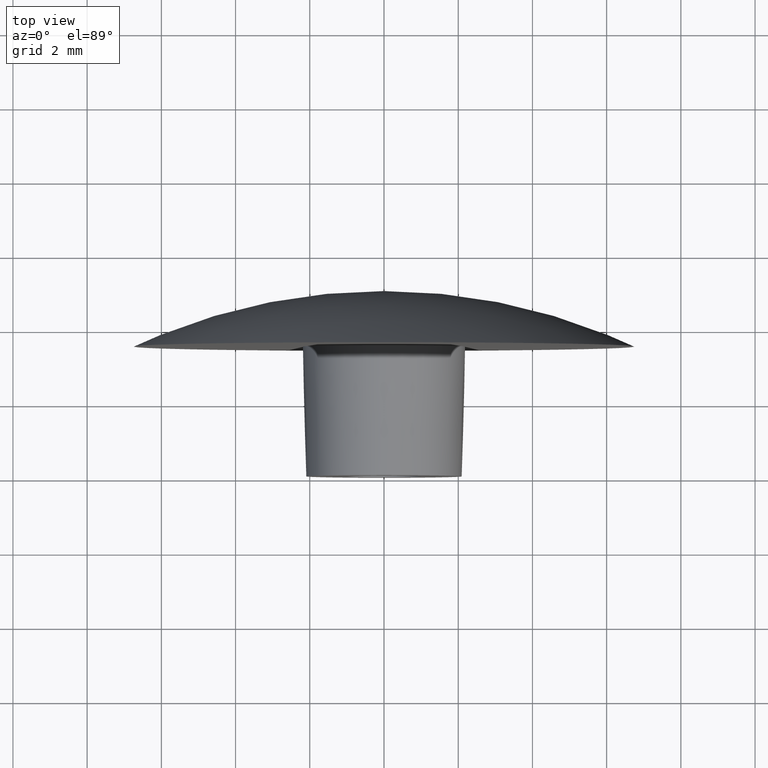
[diagram: clean part render]
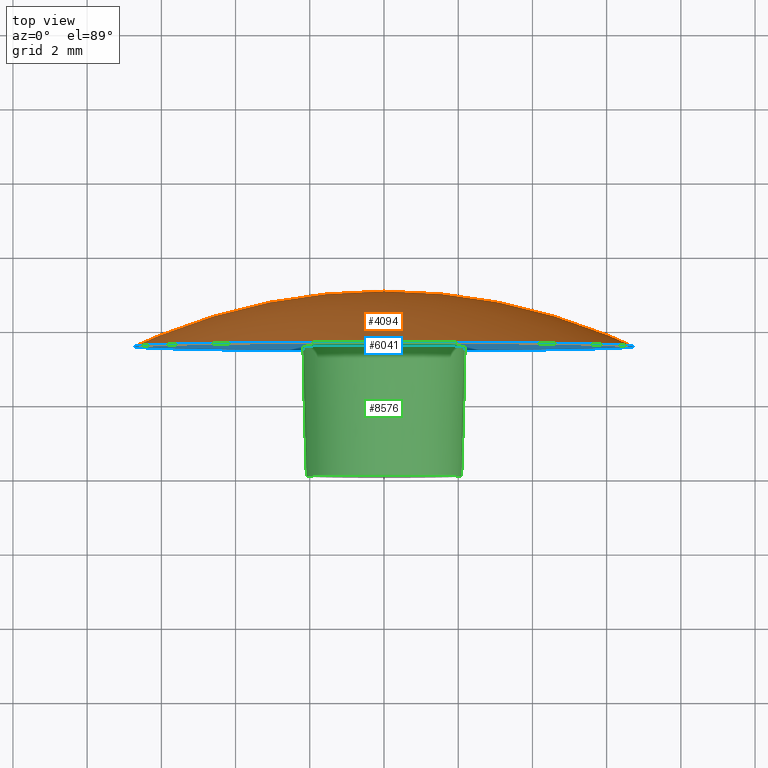
[diagram: same view with three faces highlighted in distinct colors, each labeled with its STEP entity id]
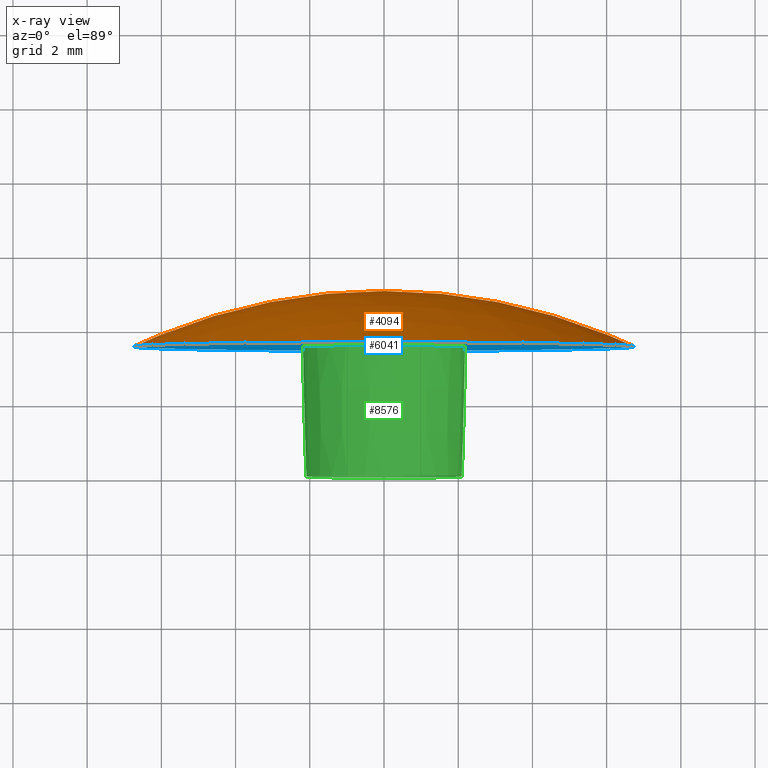
[diagram: x-ray of the same camera — body ghosted, the three highlighted faces saturated]
A machine part, top view with three faces highlighted in distinct colors.
The next image is the same camera in x-ray (body ghosted, the three faces saturated) — at least one of them is partly hidden behind the body in this view.
Their STEP definitions:

[orange] entity #4094 — the highlighted spherical surface has radius 15.9375 mm.
#1962 = AXIS2_PLACEMENT_3D ( 'NONE', #8669, #10392, #9631 ) ;
#2151 = EDGE_CURVE ( 'NONE', #7043, #7043, #9759, .T. ) ;
#2532 = DIRECTION ( 'NONE',  ( 0.000000000000000000, 0.000000000000000000, -1.000000000000000000 ) ) ;
#2568 = CARTESIAN_POINT ( 'NONE',  ( 0.000000000000000000, 3.500000000000001332, -6.749999999999998224 ) ) ;
#3389 = CARTESIAN_POINT ( 'NONE',  ( 0.000000000000000000, 3.500000000000001332, 0.000000000000000000 ) ) ;
#4094 = ADVANCED_FACE ( 'NONE', ( #6294 ), #9262, .T. ) ;
#4562 = EDGE_LOOP ( 'NONE', ( #5551 ) ) ;
#5551 = ORIENTED_EDGE ( 'NONE', *, *, #2151, .F. ) ;
#5786 = AXIS2_PLACEMENT_3D ( 'NONE', #3389, #9164, #2532 ) ;
#6294 = FACE_OUTER_BOUND ( 'NONE', #4562, .T. ) ;
#7043 = VERTEX_POINT ( 'NONE', #2568 ) ;
#8669 = CARTESIAN_POINT ( 'NONE',  ( 0.000000000000000000, -10.93750000000000178, 0.000000000000000000 ) ) ;
#9164 = DIRECTION ( 'NONE',  ( -0.000000000000000000, -1.000000000000000000, -0.000000000000000000 ) ) ;
#9262 = SPHERICAL_SURFACE ( 'NONE', #1962, 15.93750000000000000 ) ;
#9631 = DIRECTION ( 'NONE',  ( 1.000000000000000000, 0.000000000000000000, 0.000000000000000000 ) ) ;
#9759 = CIRCLE ( 'NONE', #5786, 6.749999999999998224 ) ;
#10392 = DIRECTION ( 'NONE',  ( 0.000000000000000000, 0.000000000000000000, 1.000000000000000000 ) ) ;

[blue] entity #6041 — the highlighted planar face has unit normal (0, -1, -0).
#542 = DIRECTION ( 'NONE',  ( 0.000000000000000000, -1.000000000000000000, -0.000000000000000000 ) ) ;
#607 = ORIENTED_EDGE ( 'NONE', *, *, #6146, .F. ) ;
#918 = CARTESIAN_POINT ( 'NONE',  ( 0.000000000000000000, 3.500000000000000000, -2.199999999999999734 ) ) ;
#1718 = CARTESIAN_POINT ( 'NONE',  ( 0.000000000000000000, 3.500000000000000000, 0.000000000000000000 ) ) ;
#2113 = AXIS2_PLACEMENT_3D ( 'NONE', #1718, #9798, #9831 ) ;
#2151 = EDGE_CURVE ( 'NONE', #7043, #7043, #9759, .T. ) ;
#2321 = AXIS2_PLACEMENT_3D ( 'NONE', #8794, #542, #7230 ) ;
#2532 = DIRECTION ( 'NONE',  ( 0.000000000000000000, 0.000000000000000000, -1.000000000000000000 ) ) ;
#2568 = CARTESIAN_POINT ( 'NONE',  ( 0.000000000000000000, 3.500000000000001332, -6.749999999999998224 ) ) ;
#2997 = CIRCLE ( 'NONE', #2113, 2.199999999999999734 ) ;
#3389 = CARTESIAN_POINT ( 'NONE',  ( 0.000000000000000000, 3.500000000000001332, 0.000000000000000000 ) ) ;
#4049 = FACE_OUTER_BOUND ( 'NONE', #4435, .T. ) ;
#4435 = EDGE_LOOP ( 'NONE', ( #6302 ) ) ;
#5479 = PLANE ( 'NONE',  #2321 ) ;
#5486 = VERTEX_POINT ( 'NONE', #918 ) ;
#5786 = AXIS2_PLACEMENT_3D ( 'NONE', #3389, #9164, #2532 ) ;
#6041 = ADVANCED_FACE ( 'NONE', ( #4049, #9237 ), #5479, .T. ) ;
#6146 = EDGE_CURVE ( 'NONE', #5486, #5486, #2997, .T. ) ;
#6302 = ORIENTED_EDGE ( 'NONE', *, *, #2151, .T. ) ;
#7043 = VERTEX_POINT ( 'NONE', #2568 ) ;
#7230 = DIRECTION ( 'NONE',  ( 0.000000000000000000, 0.000000000000000000, -1.000000000000000000 ) ) ;
#8794 = CARTESIAN_POINT ( 'NONE',  ( 2.199999999999999734, 3.500000000000000444, 0.000000000000000000 ) ) ;
#9164 = DIRECTION ( 'NONE',  ( -0.000000000000000000, -1.000000000000000000, -0.000000000000000000 ) ) ;
#9237 = FACE_BOUND ( 'NONE', #9571, .T. ) ;
#9571 = EDGE_LOOP ( 'NONE', ( #607 ) ) ;
#9759 = CIRCLE ( 'NONE', #5786, 6.749999999999998224 ) ;
#9798 = DIRECTION ( 'NONE',  ( -0.000000000000000000, -1.000000000000000000, -0.000000000000000000 ) ) ;
#9831 = DIRECTION ( 'NONE',  ( 0.000000000000000000, 0.000000000000000000, -1.000000000000000000 ) ) ;

[green] entity #8576 — the highlighted conical surface has half-angle 1.5 deg.
#124 = CONICAL_SURFACE ( 'NONE', #1679, 2.108349274507870685, 0.02617993877990773890 ) ;
#911 = DIRECTION ( 'NONE',  ( 0.000000000000000000, 1.000000000000000000, 0.000000000000000000 ) ) ;
#918 = CARTESIAN_POINT ( 'NONE',  ( 0.000000000000000000, 3.500000000000000000, -2.199999999999999734 ) ) ;
#1350 = ORIENTED_EDGE ( 'NONE', *, *, #6146, .T. ) ;
#1679 = AXIS2_PLACEMENT_3D ( 'NONE', #2637, #911, #7528 ) ;
#1718 = CARTESIAN_POINT ( 'NONE',  ( 0.000000000000000000, 3.500000000000000000, 0.000000000000000000 ) ) ;
#2113 = AXIS2_PLACEMENT_3D ( 'NONE', #1718, #9798, #9831 ) ;
#2502 = ORIENTED_EDGE ( 'NONE', *, *, #9854, .F. ) ;
#2637 = CARTESIAN_POINT ( 'NONE',  ( 0.000000000000000000, 0.000000000000000000, 0.000000000000000000 ) ) ;
#2638 = EDGE_LOOP ( 'NONE', ( #1350 ) ) ;
#2997 = CIRCLE ( 'NONE', #2113, 2.199999999999999734 ) ;
#3942 = CARTESIAN_POINT ( 'NONE',  ( 0.000000000000000000, 0.000000000000000000, 0.000000000000000000 ) ) ;
#4300 = EDGE_LOOP ( 'NONE', ( #2502 ) ) ;
#5486 = VERTEX_POINT ( 'NONE', #918 ) ;
#6146 = EDGE_CURVE ( 'NONE', #5486, #5486, #2997, .T. ) ;
#6867 = CIRCLE ( 'NONE', #8626, 2.108349274507870685 ) ;
#7278 = DIRECTION ( 'NONE',  ( -0.000000000000000000, -1.000000000000000000, -0.000000000000000000 ) ) ;
#7280 = FACE_OUTER_BOUND ( 'NONE', #2638, .T. ) ;
#7528 = DIRECTION ( 'NONE',  ( 0.000000000000000000, 0.000000000000000000, 1.000000000000000000 ) ) ;
#7577 = CARTESIAN_POINT ( 'NONE',  ( 0.000000000000000000, 0.000000000000000000, -2.108349274507870685 ) ) ;
#8162 = FACE_BOUND ( 'NONE', #4300, .T. ) ;
#8576 = ADVANCED_FACE ( 'NONE', ( #7280, #8162 ), #124, .T. ) ;
#8626 = AXIS2_PLACEMENT_3D ( 'NONE', #3942, #7278, #9740 ) ;
#9640 = VERTEX_POINT ( 'NONE', #7577 ) ;
#9740 = DIRECTION ( 'NONE',  ( 0.000000000000000000, 0.000000000000000000, -1.000000000000000000 ) ) ;
#9798 = DIRECTION ( 'NONE',  ( -0.000000000000000000, -1.000000000000000000, -0.000000000000000000 ) ) ;
#9831 = DIRECTION ( 'NONE',  ( 0.000000000000000000, 0.000000000000000000, -1.000000000000000000 ) ) ;
#9854 = EDGE_CURVE ( 'NONE', #9640, #9640, #6867, .T. ) ;